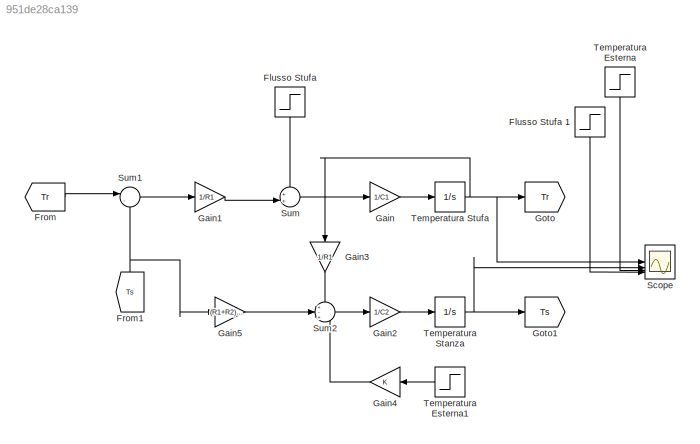
MODEL slx_951de28ca139
KIND model
CONFIG AbsTol = auto
CONFIG EnableMultiTasking = off
CONFIG FixedStep = auto
CONFIG MaxStep = auto
CONFIG MinStep = auto
CONFIG RelTol = 1e-3
CONFIG SampleTimeConstraint = Unconstrained
CONFIG SolverName = VariableStepAuto
CONFIG StartTime = 0.0
CONFIG StopTime = 100
BLOCK [Step] Flusso Stufa
  After = Q2
  Before = Q1
  NameLocation = left
  SampleTime = 0.1
  Time = 50
BLOCK [Step] Flusso Stufa 1
  After = Q2
  Before = Q1
  NameLocation = left
  SampleTime = 0
  Time = 50
BLOCK [From] From
  GotoTag = Tr
BLOCK [From] From1
  GotoTag = Ts
  NameLocation = right
BLOCK [Gain] Gain
  Gain = 1/C1
BLOCK [Gain] Gain1
  Gain = 1/R1
BLOCK [Gain] Gain2
  Gain = 1/C2
BLOCK [Gain] Gain3
  Gain = 1/R1
  NameLocation = left
BLOCK [Gain] Gain4
  NameLocation = top
BLOCK [Gain] Gain5
  Gain = (R1+R2)/R1*R2
BLOCK [Goto] Goto
  GotoTag = Tr
BLOCK [Goto] Goto1
  GotoTag = Ts
BLOCK [Scope] Scope
  Floating = off
  NumInputPorts = 4
  ScopeSpecificationString = Simulink.scopes.TimeScopeBlockCfg('CurrentConfiguration', extmgr.ConfigurationSet(extmgr.Configuration('Core','General UI',true),extmgr.Configuration('Core','Source UI',true),extmgr.Configuration('Sources','WiredSimulink',true),extmgr.Configuration('Visuals','Time Domain',true,'SerializedDisplays',{struct('MinYLimReal','-2.1875','MaxYLimReal','19.6875','YLabelReal','','MinYLimMag','0.00000','MaxYL...<+1420ch>
BLOCK [Sum] Sum
  Inputs = ++|
BLOCK [Sum] Sum1
  Inputs = |-+
BLOCK [Sum] Sum2
  Inputs = +-+
BLOCK [Step] Temperatura Esterna
  After = Te2
  Before = Te1
  NameLocation = left
  SampleTime = 0
  Time = 25
BLOCK [Step] Temperatura Esterna1
  After = Te2
  Before = Te1
  NameLocation = top
  SampleTime = 0
  Time = 25
BLOCK [Integrator] Temperatura Stanza
BLOCK [Integrator] Temperatura Stufa
LINE Flusso Stufa 1:1 -> Scope:4
LINE Flusso Stufa:1 -> Sum:1
NET From1:1 -> Gain5:1, Sum1:2
LINE From:1 -> Sum1:1
LINE Gain1:1 -> Sum:2
LINE Gain2:1 -> Temperatura Stanza:1
LINE Gain3:1 -> Sum2:1
LINE Gain4:1 -> Sum2:3
LINE Gain5:1 -> Sum2:2
LINE Gain:1 -> Temperatura Stufa:1
LINE Sum1:1 -> Gain1:1
LINE Sum2:1 -> Gain2:1
LINE Sum:1 -> Gain:1
LINE Temperatura Esterna1:1 -> Gain4:1
LINE Temperatura Esterna:1 -> Scope:3
NET Temperatura Stanza:1 -> Goto1:1, Scope:2
NET Temperatura Stufa:1 -> Gain3:1, Goto:1, Scope:1
note: NET lines group one-source signal fan-out (src -> all destinations, sorted); 1:1 wires keep LINE
